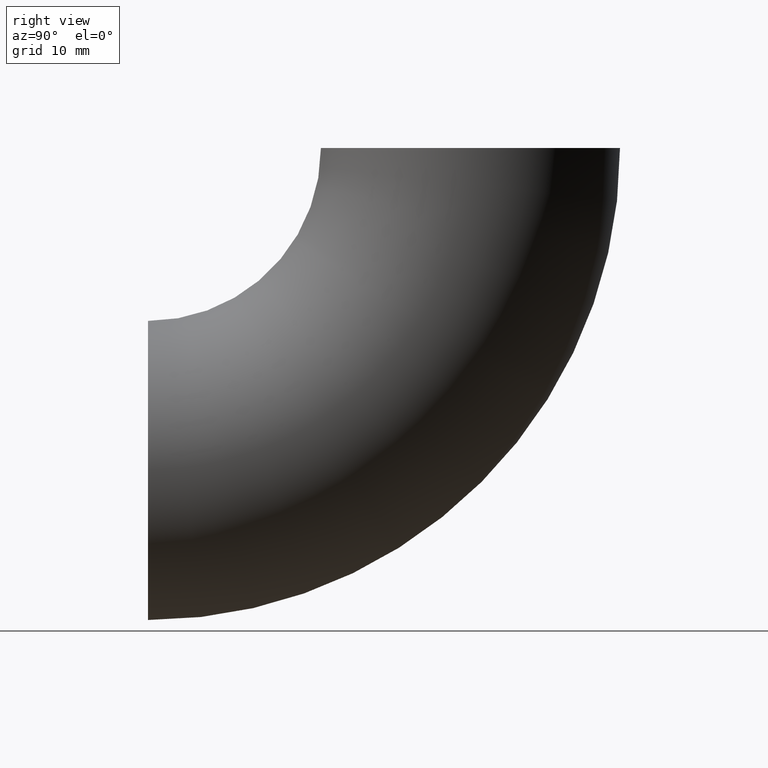
[diagram: clean part render]
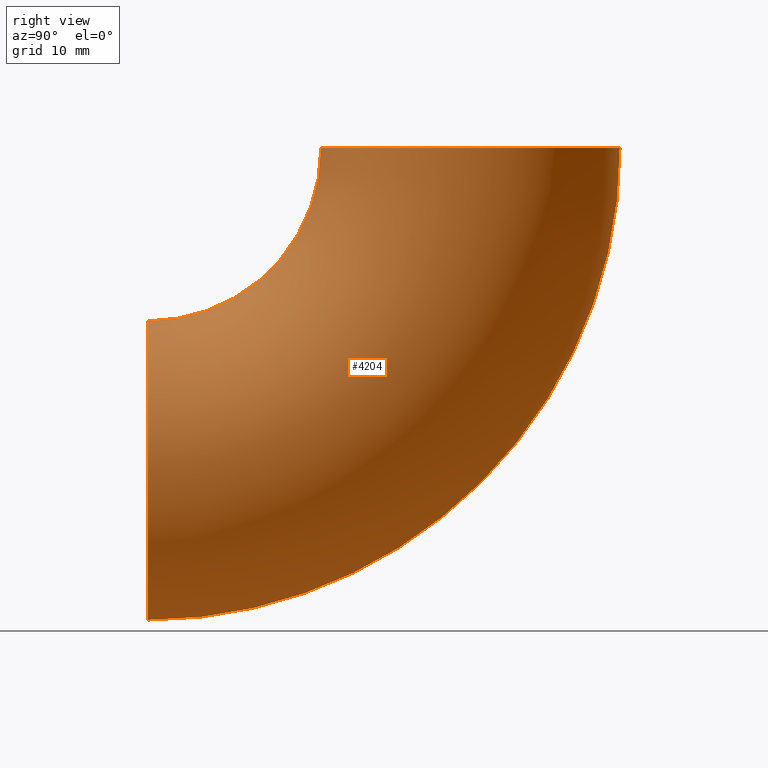
[diagram: same view with one face highlighted and labeled with its STEP entity id]
A machine part, right view. The second image highlights one B-rep face of the part: STEP entity #4204.
In plain terms, the highlighted toroidal blend (fillet) surface has major radius 29 mm and minor (blend) radius 13.45 mm.
Its self-contained STEP definition (entity closure, byte-faithful):
#205 = DIRECTION ( 'NONE',  ( 0.0000000000000000000, 6.123233995736766000E-017, 1.000000000000000000 ) ) ;
#639 = VERTEX_POINT ( 'NONE', #5416 ) ;
#1426 = AXIS2_PLACEMENT_3D ( 'NONE', #4236, #5038, #3226 ) ;
#1531 = CARTESIAN_POINT ( 'NONE',  ( 0.0000000000000000000, 0.0000000000000000000, -42.45000000000000300 ) ) ;
#1744 = FACE_OUTER_BOUND ( 'NONE', #4969, .T. ) ;
#1772 = DIRECTION ( 'NONE',  ( -1.000000000000000000, -0.0000000000000000000, -0.0000000000000000000 ) ) ;
#1897 = AXIS2_PLACEMENT_3D ( 'NONE', #9398, #5817, #8507 ) ;
#1928 = DIRECTION ( 'NONE',  ( 0.0000000000000000000, 0.0000000000000000000, 1.000000000000000000 ) ) ;
#1985 = CARTESIAN_POINT ( 'NONE',  ( 0.0000000000000000000, 29.00000000000000000, -1.775737858763662000E-015 ) ) ;
#1989 = EDGE_CURVE ( 'NONE', #11309, #639, #11345, .T. ) ;
#2001 = CARTESIAN_POINT ( 'NONE',  ( 0.0000000000000000000, 0.0000000000000000000, 0.0000000000000000000 ) ) ;
#2491 = EDGE_CURVE ( 'NONE', #5471, #4699, #3411, .T. ) ;
#3226 = DIRECTION ( 'NONE',  ( 0.0000000000000000000, 0.0000000000000000000, 1.000000000000000000 ) ) ;
#3411 = CIRCLE ( 'NONE', #9747, 42.45000000000000300 ) ;
#3810 = CARTESIAN_POINT ( 'NONE',  ( 0.0000000000000000000, 42.45000000000000300, -2.599312831190256900E-015 ) ) ;
#4204 = ADVANCED_FACE ( 'NONE', ( #1744 ), #5468, .T. ) ;
#4236 = CARTESIAN_POINT ( 'NONE',  ( 1.647149944853190000E-015, 0.0000000000000000000, 0.0000000000000000000 ) ) ;
#4699 = VERTEX_POINT ( 'NONE', #1531 ) ;
#4969 = EDGE_LOOP ( 'NONE', ( #6158, #8598, #10259, #8746 ) ) ;
#4998 = CIRCLE ( 'NONE', #1897, 13.44999999999999900 ) ;
#5038 = DIRECTION ( 'NONE',  ( -1.000000000000000000, -0.0000000000000000000, -0.0000000000000000000 ) ) ;
#5416 = CARTESIAN_POINT ( 'NONE',  ( 0.0000000000000000000, 0.0000000000000000000, -15.55000000000000100 ) ) ;
#5468 = TOROIDAL_SURFACE ( 'NONE', #10436, 29.00000000000000000, 13.44999999999999900 ) ;
#5471 = VERTEX_POINT ( 'NONE', #3810 ) ;
#5817 = DIRECTION ( 'NONE',  ( 0.0000000000000000000, 1.000000000000000000, 0.0000000000000000000 ) ) ;
#6005 = EDGE_CURVE ( 'NONE', #11309, #5471, #8806, .T. ) ;
#6158 = ORIENTED_EDGE ( 'NONE', *, *, #2491, .F. ) ;
#6204 = DIRECTION ( 'NONE',  ( 0.0000000000000000000, 0.0000000000000000000, 1.000000000000000000 ) ) ;
#6371 = DIRECTION ( 'NONE',  ( -1.000000000000000000, -0.0000000000000000000, -0.0000000000000000000 ) ) ;
#7059 = CARTESIAN_POINT ( 'NONE',  ( 0.0000000000000000000, 0.0000000000000000000, 0.0000000000000000000 ) ) ;
#8297 = DIRECTION ( 'NONE',  ( 0.0000000000000000000, -1.000000000000000000, 6.123233995736764800E-017 ) ) ;
#8507 = DIRECTION ( 'NONE',  ( 0.0000000000000000000, 0.0000000000000000000, 1.000000000000000000 ) ) ;
#8598 = ORIENTED_EDGE ( 'NONE', *, *, #6005, .F. ) ;
#8746 = ORIENTED_EDGE ( 'NONE', *, *, #11219, .T. ) ;
#8806 = CIRCLE ( 'NONE', #9401, 13.44999999999999900 ) ;
#9398 = CARTESIAN_POINT ( 'NONE',  ( 0.0000000000000000000, 0.0000000000000000000, -29.00000000000000000 ) ) ;
#9401 = AXIS2_PLACEMENT_3D ( 'NONE', #1985, #205, #8297 ) ;
#9747 = AXIS2_PLACEMENT_3D ( 'NONE', #7059, #1772, #6204 ) ;
#10259 = ORIENTED_EDGE ( 'NONE', *, *, #1989, .T. ) ;
#10436 = AXIS2_PLACEMENT_3D ( 'NONE', #2001, #6371, #1928 ) ;
#11121 = CARTESIAN_POINT ( 'NONE',  ( 0.0000000000000000000, 15.55000000000000100, -9.521628863370671200E-016 ) ) ;
#11219 = EDGE_CURVE ( 'NONE', #639, #4699, #4998, .T. ) ;
#11309 = VERTEX_POINT ( 'NONE', #11121 ) ;
#11345 = CIRCLE ( 'NONE', #1426, 15.55000000000000100 ) ;